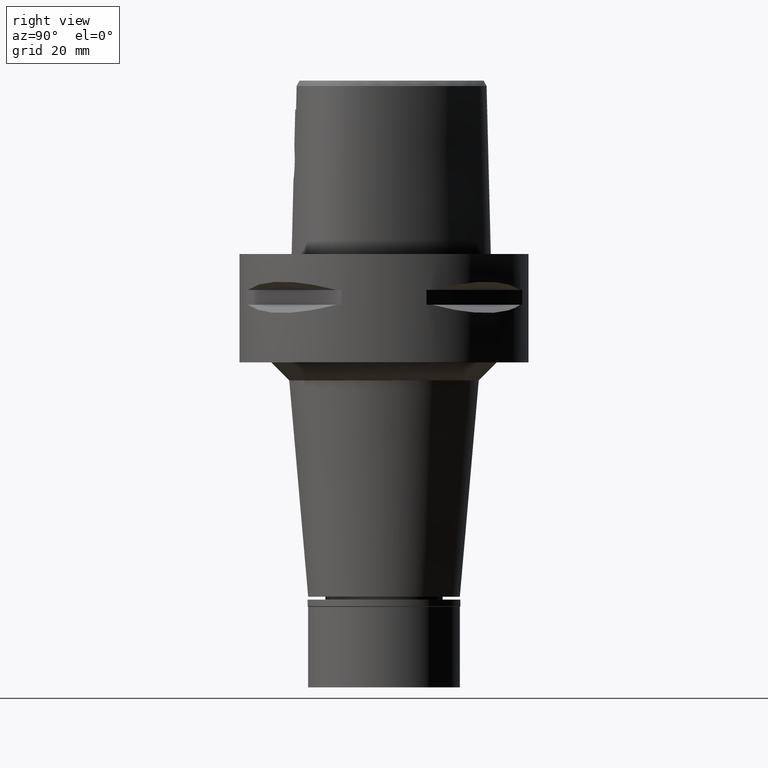
[diagram: clean part render]
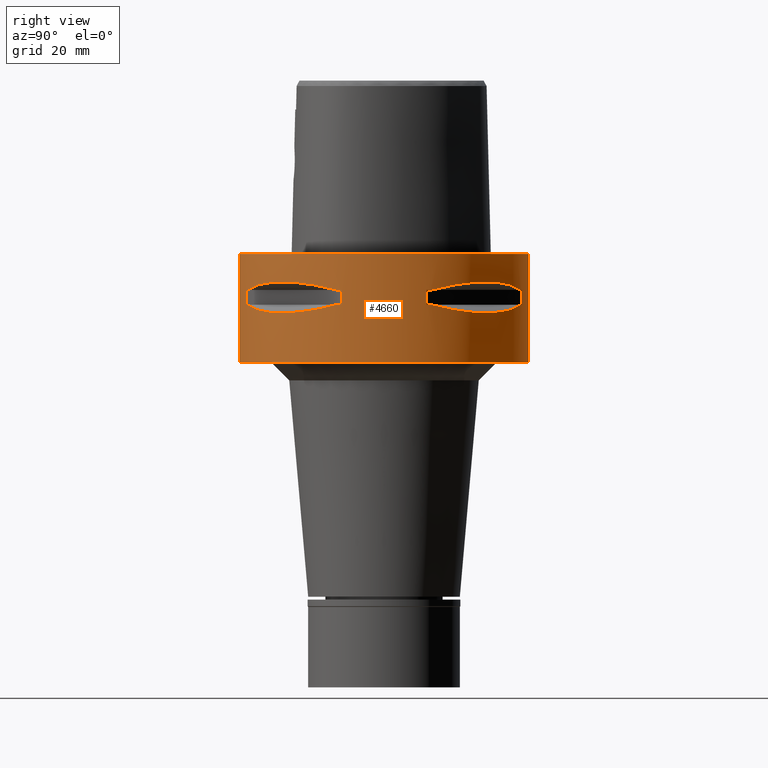
[diagram: same view with one face highlighted and labeled with its STEP entity id]
A machine part, right view. The second image highlights one B-rep face of the part: STEP entity #4660.
In plain terms, the highlighted cylindrical surface (partial cylindrical patch) has radius 40 mm, axis along (0, 0, -1).
Its self-contained STEP definition (entity closure, byte-faithful):
#9 = AXIS2_PLACEMENT_3D ( 'NONE', #1593, #3193, #4768 ) ;
#87 = EDGE_CURVE ( 'NONE', #1760, #4686, #3591, .T. ) ;
#182 = CYLINDRICAL_SURFACE ( 'NONE', #4574, 40.00000000000000000 ) ;
#204 = VERTEX_POINT ( 'NONE', #229 ) ;
#220 = CARTESIAN_POINT ( 'NONE',  ( 0.0000000000000000000, 1.293533181598999990E-14, -14.05000000000000071 ) ) ;
#229 = CARTESIAN_POINT ( 'NONE',  ( 13.23717311056000057, -37.74622163926999718, -9.950000000002001244 ) ) ;
#233 = AXIS2_PLACEMENT_3D ( 'NONE', #593, #4250, #2279 ) ;
#234 = DIRECTION ( 'NONE',  ( 0.0000000000000000000, 0.0000000000000000000, 1.000000000000000000 ) ) ;
#287 = CARTESIAN_POINT ( 'NONE',  ( 33.76566745675005166, 21.44484052678287256, -15.77571175125579828 ) ) ;
#371 = CARTESIAN_POINT ( 'NONE',  ( 20.34261333234551472, -34.44518065740425783, -15.60313948593864275 ) ) ;
#385 = CARTESIAN_POINT ( 'NONE',  ( 0.0000000000000000000, 40.00000000000000000, 0.0000000000000000000 ) ) ;
#392 = CARTESIAN_POINT ( 'NONE',  ( 21.50560509406274434, 33.72697758561020720, -15.78472370821746118 ) ) ;
#428 = CIRCLE ( 'NONE', #9, 39.99999999999999289 ) ;
#440 = CARTESIAN_POINT ( 'NONE',  ( 30.77249687753092289, -25.62819065487347814, -16.26160051742767365 ) ) ;
#457 = CARTESIAN_POINT ( 'NONE',  ( 0.0000000000000000000, 1.293533181598999990E-14, -9.950000000000001066 ) ) ;
#515 = DIRECTION ( 'NONE',  ( 0.0000000000000000000, 0.0000000000000000000, -1.000000000000000000 ) ) ;
#536 = DIRECTION ( 'NONE',  ( 0.0000000000000000000, 0.0000000000000000000, 1.000000000000000000 ) ) ;
#551 = CARTESIAN_POINT ( 'NONE',  ( 0.0000000000000000000, 40.00000000000000000, -30.00000000000000000 ) ) ;
#575 = CARTESIAN_POINT ( 'NONE',  ( 0.0000000000000000000, -40.00000000000000000, 0.0000000000000000000 ) ) ;
#576 = CIRCLE ( 'NONE', #2430, 39.99999999999999289 ) ;
#593 = CARTESIAN_POINT ( 'NONE',  ( 0.0000000000000000000, 1.293533181598999990E-14, -14.05000000000000071 ) ) ;
#601 = CARTESIAN_POINT ( 'NONE',  ( 37.74622163926999718, 13.23717311056000057, -14.05000000000000071 ) ) ;
#632 = ORIENTED_EDGE ( 'NONE', *, *, #3726, .T. ) ;
#649 = DIRECTION ( 'NONE',  ( 0.0000000000000000000, 0.0000000000000000000, 1.000000000000000000 ) ) ;
#679 = LINE ( 'NONE', #4259, #2286 ) ;
#687 = VERTEX_POINT ( 'NONE', #2782 ) ;
#756 = CARTESIAN_POINT ( 'NONE',  ( 23.60097336453497618, 32.30995221951452834, -16.06165603927751917 ) ) ;
#764 = CARTESIAN_POINT ( 'NONE',  ( 37.74622163926999718, -13.23717311056000057, -9.950000000002001244 ) ) ;
#780 = DIRECTION ( 'NONE',  ( 0.0000000000000000000, 0.0000000000000000000, 1.000000000000000000 ) ) ;
#785 = CARTESIAN_POINT ( 'NONE',  ( 30.34851826270024944, 26.21995747455423853, -16.33009976521772799 ) ) ;
#789 = CARTESIAN_POINT ( 'NONE',  ( 26.20795918965211158, -30.36058330527167115, -7.669882118573495333 ) ) ;
#804 = CARTESIAN_POINT ( 'NONE',  ( 13.23717311056000057, 37.74622163926999718, -14.05000000000000071 ) ) ;
#828 = CARTESIAN_POINT ( 'NONE',  ( 23.95303639238279914, -32.16767032370825063, -16.14729882780506287 ) ) ;
#832 = CARTESIAN_POINT ( 'NONE',  ( 35.41596287855380609, 18.83173199174708046, -8.619939612211808821 ) ) ;
#833 = EDGE_CURVE ( 'NONE', #972, #2901, #428, .T. ) ;
#914 = CARTESIAN_POINT ( 'NONE',  ( 11.76033600280999991, 38.23211342708000160, -9.950000000000001066 ) ) ;
#972 = VERTEX_POINT ( 'NONE', #2540 ) ;
#984 = DIRECTION ( 'NONE',  ( 0.0000000000000000000, 0.0000000000000000000, -1.000000000000000000 ) ) ;
#1005 = DIRECTION ( 'NONE',  ( 0.0000000000000000000, 0.0000000000000000000, 1.000000000000000000 ) ) ;
#1073 = CARTESIAN_POINT ( 'NONE',  ( 33.91944728533341191, 21.20128033779756294, -15.73905907260447101 ) ) ;
#1096 = DIRECTION ( 'NONE',  ( 0.0000000000000000000, 1.000000000000000000, 0.0000000000000000000 ) ) ;
#1108 = ORIENTED_EDGE ( 'NONE', *, *, #1537, .T. ) ;
#1126 = CARTESIAN_POINT ( 'NONE',  ( 21.62017158009700069, 33.65365962422837498, -15.80156334789098160 ) ) ;
#1149 = DIRECTION ( 'NONE',  ( 0.3309293277639132058, -0.9436555409818374596, 0.0000000000000000000 ) ) ;
#1150 = EDGE_CURVE ( 'NONE', #1550, #2199, #4187, .T. ) ;
#1154 = CARTESIAN_POINT ( 'NONE',  ( 32.16767032371209467, 23.95303639237203797, -16.14729882780224202 ) ) ;
#1155 = ORIENTED_EDGE ( 'NONE', *, *, #3350, .F. ) ;
#1170 = DIRECTION ( 'NONE',  ( 0.0000000000000000000, 0.0000000000000000000, -1.000000000000000000 ) ) ;
#1181 = CARTESIAN_POINT ( 'NONE',  ( 33.56701934068144766, -21.75464223249341345, -15.82109001420603533 ) ) ;
#1209 = CARTESIAN_POINT ( 'NONE',  ( 20.91613153241887701, -34.09685321779939926, -15.69507322892818557 ) ) ;
#1230 = CARTESIAN_POINT ( 'NONE',  ( 16.81132763099230587, -36.35358138589664634, -14.94059947014864775 ) ) ;
#1232 = CARTESIAN_POINT ( 'NONE',  ( 37.74622163926999718, 13.23717311056000057, -9.950000000002001244 ) ) ;
#1247 = CARTESIAN_POINT ( 'NONE',  ( 0.0000000000000000000, 1.293533181598999990E-14, -9.950000000000001066 ) ) ;
#1292 = ORIENTED_EDGE ( 'NONE', *, *, #4493, .F. ) ;
#1401 = CARTESIAN_POINT ( 'NONE',  ( 0.0000000000000000000, 1.293533181598999990E-14, 0.0000000000000000000 ) ) ;
#1419 = EDGE_LOOP ( 'NONE', ( #3532, #4298, #632, #3756, #5059, #2111, #1769, #3427 ) ) ;
#1442 = VECTOR ( 'NONE', #1715, 1000.000000000000000 ) ;
#1446 = VERTEX_POINT ( 'NONE', #2066 ) ;
#1501 = ORIENTED_EDGE ( 'NONE', *, *, #4777, .T. ) ;
#1520 = CARTESIAN_POINT ( 'NONE',  ( 34.09685321779860345, 20.91613153242115075, -15.69507322892878953 ) ) ;
#1527 = CARTESIAN_POINT ( 'NONE',  ( 18.83173199174709467, -35.41596287855377767, -8.619939612211808821 ) ) ;
#1537 = EDGE_CURVE ( 'NONE', #204, #2460, #4005, .T. ) ;
#1549 = CARTESIAN_POINT ( 'NONE',  ( 22.02254759438460141, 33.39247868354773630, -15.85920599531294783 ) ) ;
#1550 = VERTEX_POINT ( 'NONE', #2380 ) ;
#1586 = CARTESIAN_POINT ( 'NONE',  ( 0.0000000000000000000, 1.293533181598999990E-14, -9.950000000000001066 ) ) ;
#1593 = CARTESIAN_POINT ( 'NONE',  ( 0.0000000000000000000, 1.293533181598999990E-14, -14.05000000000000071 ) ) ;
#1596 = CARTESIAN_POINT ( 'NONE',  ( 33.72697758561029246, -21.50560509406250276, -15.78472370821739901 ) ) ;
#1611 = CIRCLE ( 'NONE', #5060, 40.00000000000000000 ) ;
#1715 = DIRECTION ( 'NONE',  ( 0.0000000000000000000, 0.0000000000000000000, -1.000000000000000000 ) ) ;
#1735 = CARTESIAN_POINT ( 'NONE',  ( 38.23211342708000160, 11.76033600280999991, -9.950000000000001066 ) ) ;
#1749 = EDGE_CURVE ( 'NONE', #1843, #1446, #3693, .T. ) ;
#1760 = VERTEX_POINT ( 'NONE', #3237 ) ;
#1769 = ORIENTED_EDGE ( 'NONE', *, *, #4557, .T. ) ;
#1801 = CARTESIAN_POINT ( 'NONE',  ( 33.82993376593505275, 21.34345216682098112, -15.76055673748761166 ) ) ;
#1843 = VERTEX_POINT ( 'NONE', #3665 ) ;
#1849 = DIRECTION ( 'NONE',  ( 0.3309293277639132058, 0.9436555409818374596, 0.0000000000000000000 ) ) ;
#1853 = CARTESIAN_POINT ( 'NONE',  ( 0.0000000000000000000, -40.00000000000000000, 0.0000000000000000000 ) ) ;
#1878 = CARTESIAN_POINT ( 'NONE',  ( 0.0000000000000000000, 1.293533181598999990E-14, -9.950000000000001066 ) ) ;
#1889 = CARTESIAN_POINT ( 'NONE',  ( 33.75216276490046852, 21.46607685731544990, -15.77886817953061005 ) ) ;
#1935 = LINE ( 'NONE', #5063, #2998 ) ;
#1949 = CARTESIAN_POINT ( 'NONE',  ( 21.52391145898924663, 33.71529052282357952, -15.78742602700012831 ) ) ;
#1958 = VECTOR ( 'NONE', #234, 1000.000000000000000 ) ;
#1979 = ORIENTED_EDGE ( 'NONE', *, *, #87, .T. ) ;
#1988 = VERTEX_POINT ( 'NONE', #385 ) ;
#1990 = CARTESIAN_POINT ( 'NONE',  ( 38.23211342708000160, -11.76033600280999991, -9.950000000000001066 ) ) ;
#1999 = CARTESIAN_POINT ( 'NONE',  ( 21.46607685731536819, -33.75216276490051825, -15.77886817953059051 ) ) ;
#2006 = CARTESIAN_POINT ( 'NONE',  ( 35.41591128513823605, -18.83182902076454468, -8.619912199391261964 ) ) ;
#2023 = CARTESIAN_POINT ( 'NONE',  ( 21.34345216682037716, -33.82993376593525170, -15.76055673748744468 ) ) ;
#2029 = CARTESIAN_POINT ( 'NONE',  ( 23.88355431037091137, -32.22577213857957901, -7.859897272571249260 ) ) ;
#2034 = VECTOR ( 'NONE', #515, 1000.000000000000000 ) ;
#2046 = CARTESIAN_POINT ( 'NONE',  ( 33.65365962422774260, -21.62017158009728135, -15.80156334789082528 ) ) ;
#2062 = DIRECTION ( 'NONE',  ( 0.0000000000000000000, 0.0000000000000000000, 1.000000000000000000 ) ) ;
#2066 = CARTESIAN_POINT ( 'NONE',  ( 38.23211342708000160, 11.76033600280999991, -14.05000000000000071 ) ) ;
#2068 = B_SPLINE_CURVE_WITH_KNOTS ( 'NONE', 3,
 ( #601, #5078, #4229, #2255, #3777, #1520, #1073, #1801, #2285, #287, #1889, #1154, #785, #2755, #4337, #756, #2826, #1549, #2442, #1126, #3823, #1949, #392, #4750, #2372, #804 ),
 .UNSPECIFIED., .F., .F.,
 ( 4, 1, 1, 1, 1, 1, 1, 2, 2, 2, 1, 1, 1, 1, 1, 1, 2, 2, 4 ),
 ( 0.0000000000000000000, 0.1249999999999938660, 0.1874999999999906741, 0.2187499999999889255, 0.2343749999999879541, 0.2421874999999872879, 0.2460937499999869549, 0.2480468749999869271, 0.2499999999999869271, 0.4999999999999968914, 0.6250000000000018874, 0.6875000000000044409, 0.7187500000000057732, 0.7343750000000064393, 0.7421875000000067724, 0.7460937500000065503, 0.7480468750000062172, 0.7500000000000058842, 1.000000000000000000 ),
 .UNSPECIFIED. ) ;
#2111 = ORIENTED_EDGE ( 'NONE', *, *, #1749, .F. ) ;
#2126 = EDGE_CURVE ( 'NONE', #972, #4646, #3068, .T. ) ;
#2131 = DIRECTION ( 'NONE',  ( 0.0000000000000000000, 0.0000000000000000000, -1.000000000000000000 ) ) ;
#2199 = VERTEX_POINT ( 'NONE', #914 ) ;
#2251 = CIRCLE ( 'NONE', #233, 39.99999999999999289 ) ;
#2255 = CARTESIAN_POINT ( 'NONE',  ( 35.11589783530617126, 19.18269457493275354, -15.40342377741110091 ) ) ;
#2279 = DIRECTION ( 'NONE',  ( 0.2940084000702865574, 0.9558028356769561196, 0.0000000000000000000 ) ) ;
#2285 = CARTESIAN_POINT ( 'NONE',  ( 33.79139713908593023, 21.40429668490282467, -15.76966389594722528 ) ) ;
#2286 = VECTOR ( 'NONE', #649, 1000.000000000000000 ) ;
#2323 = VERTEX_POINT ( 'NONE', #3119 ) ;
#2342 = CIRCLE ( 'NONE', #2841, 39.99999999999999289 ) ;
#2372 = CARTESIAN_POINT ( 'NONE',  ( 16.14402792110260521, 36.72682052670324993, -14.82054974552761095 ) ) ;
#2380 = CARTESIAN_POINT ( 'NONE',  ( 13.23717311056000057, 37.74622163926999718, -9.950000000002001244 ) ) ;
#2417 = CARTESIAN_POINT ( 'NONE',  ( 37.74622163926999718, -13.23717311056000057, -14.05000000000000071 ) ) ;
#2430 = AXIS2_PLACEMENT_3D ( 'NONE', #1586, #4711, #4355 ) ;
#2442 = CARTESIAN_POINT ( 'NONE',  ( 21.75464223249287699, 33.56701934068274795, -15.82109001420633732 ) ) ;
#2448 = CARTESIAN_POINT ( 'NONE',  ( 30.36058330527161075, 26.20795918965221460, -7.669882118573495333 ) ) ;
#2458 = B_SPLINE_CURVE_WITH_KNOTS ( 'NONE', 3,
 ( #3548, #3196, #1230, #3172, #371, #1209, #3570, #2023, #3600, #4368, #1999, #828, #4390, #5133, #440, #3146, #4771, #4025, #1181, #2046, #2807, #3523, #1596, #4722, #2785, #2417 ),
 .UNSPECIFIED., .F., .F.,
 ( 4, 1, 1, 1, 1, 1, 1, 2, 2, 2, 1, 1, 1, 1, 1, 1, 2, 2, 4 ),
 ( 0.0000000000000000000, 0.1250000000000018319, 0.1875000000000027478, 0.2187500000000032196, 0.2343750000000035805, 0.2421875000000038025, 0.2460937500000040523, 0.2480468750000043576, 0.2500000000000046629, 0.5000000000000000000, 0.6249999999999975575, 0.6874999999999964473, 0.7187499999999961142, 0.7343749999999960032, 0.7421874999999960032, 0.7460937499999957812, 0.7480468749999958922, 0.7499999999999958922, 1.000000000000000000 ),
 .UNSPECIFIED. ) ;
#2460 = VERTEX_POINT ( 'NONE', #5047 ) ;
#2540 = CARTESIAN_POINT ( 'NONE',  ( 38.23211342708000160, -11.76033600280999991, -14.05000000000000071 ) ) ;
#2561 = EDGE_CURVE ( 'NONE', #687, #3740, #2068, .T. ) ;
#2571 = CARTESIAN_POINT ( 'NONE',  ( 0.0000000000000000000, 40.00000000000000000, 0.0000000000000000000 ) ) ;
#2607 = EDGE_CURVE ( 'NONE', #3707, #2901, #2458, .T. ) ;
#2614 = ORIENTED_EDGE ( 'NONE', *, *, #833, .T. ) ;
#2700 = CARTESIAN_POINT ( 'NONE',  ( 0.0000000000000000000, 1.293533181598999990E-14, -30.00000000000000000 ) ) ;
#2725 = CARTESIAN_POINT ( 'NONE',  ( 0.0000000000000000000, 1.293533181598999990E-14, -14.05000000000000071 ) ) ;
#2737 = CARTESIAN_POINT ( 'NONE',  ( 36.74070924257181758, -16.10442380448734312, -9.189948522868267133 ) ) ;
#2755 = CARTESIAN_POINT ( 'NONE',  ( 27.25214773984120598, 29.31642813391417590, -16.33014064577303515 ) ) ;
#2760 = CARTESIAN_POINT ( 'NONE',  ( 37.74622163926999718, 13.23717311056000057, -9.950000000002001244 ) ) ;
#2761 = CARTESIAN_POINT ( 'NONE',  ( 13.23717311056000057, -37.74622163926999718, -9.950000000002001244 ) ) ;
#2782 = CARTESIAN_POINT ( 'NONE',  ( 37.74622163926999718, 13.23717311056000057, -14.05000000000000071 ) ) ;
#2785 = CARTESIAN_POINT ( 'NONE',  ( 36.72682052669194519, -16.14402792113480345, -14.82054974553614635 ) ) ;
#2790 = EDGE_CURVE ( 'NONE', #4592, #2199, #679, .T. ) ;
#2807 = CARTESIAN_POINT ( 'NONE',  ( 33.69065616467145929, -21.56243030661679327, -15.79309434609244001 ) ) ;
#2826 = CARTESIAN_POINT ( 'NONE',  ( 22.55421454656803704, 33.03835700910301654, -15.93168855142971374 ) ) ;
#2839 = CIRCLE ( 'NONE', #3815, 39.99999999999997868 ) ;
#2841 = AXIS2_PLACEMENT_3D ( 'NONE', #457, #2062, #2895 ) ;
#2888 = FACE_OUTER_BOUND ( 'NONE', #3935, .T. ) ;
#2895 = DIRECTION ( 'NONE',  ( 0.2940084000702865574, -0.9558028356769561196, 0.0000000000000000000 ) ) ;
#2901 = VERTEX_POINT ( 'NONE', #4314 ) ;
#2963 = DIRECTION ( 'NONE',  ( 0.0000000000000000000, -1.000000000000000000, 0.0000000000000000000 ) ) ;
#2969 = VERTEX_POINT ( 'NONE', #1232 ) ;
#2976 = DIRECTION ( 'NONE',  ( 0.0000000000000000000, 0.0000000000000000000, -1.000000000000000000 ) ) ;
#2977 = CARTESIAN_POINT ( 'NONE',  ( 13.23717311056000057, 37.74622163926999718, -9.950000000002001244 ) ) ;
#2998 = VECTOR ( 'NONE', #1170, 1000.000000000000000 ) ;
#3068 = LINE ( 'NONE', #3808, #1958 ) ;
#3081 = CARTESIAN_POINT ( 'NONE',  ( 13.23717311056000057, -37.74622163926999718, -14.05000000000000071 ) ) ;
#3119 = CARTESIAN_POINT ( 'NONE',  ( 11.76033600280999991, -38.23211342708000160, -9.950000000000001066 ) ) ;
#3146 = CARTESIAN_POINT ( 'NONE',  ( 32.30995221950663421, -23.60097336453835837, -16.06165603927566821 ) ) ;
#3172 = CARTESIAN_POINT ( 'NONE',  ( 19.18269457492549179, -35.11589783530871500, -15.40342377740917001 ) ) ;
#3174 = AXIS2_PLACEMENT_3D ( 'NONE', #2725, #3991, #1149 ) ;
#3193 = DIRECTION ( 'NONE',  ( 0.0000000000000000000, 0.0000000000000000000, -1.000000000000000000 ) ) ;
#3196 = CARTESIAN_POINT ( 'NONE',  ( 14.69039122917563844, -37.23659447745037454, -14.43521939500837981 ) ) ;
#3222 = CARTESIAN_POINT ( 'NONE',  ( 36.74073341982096252, 16.10435486228974611, -9.189966798081965038 ) ) ;
#3225 = CARTESIAN_POINT ( 'NONE',  ( 30.36058330527161075, -26.20795918965218618, -7.669863843587148011 ) ) ;
#3237 = CARTESIAN_POINT ( 'NONE',  ( 0.0000000000000000000, -40.00000000000000000, -30.00000000000000000 ) ) ;
#3266 = LINE ( 'NONE', #2571, #1442 ) ;
#3319 = CARTESIAN_POINT ( 'NONE',  ( 0.0000000000000000000, 1.293533181598999990E-14, 5.625000000000000000 ) ) ;
#3342 = LINE ( 'NONE', #575, #3402 ) ;
#3350 = EDGE_CURVE ( 'NONE', #1988, #4686, #3266, .T. ) ;
#3387 = ORIENTED_EDGE ( 'NONE', *, *, #4240, .T. ) ;
#3402 = VECTOR ( 'NONE', #2131, 1000.000000000000000 ) ;
#3427 = ORIENTED_EDGE ( 'NONE', *, *, #4968, .T. ) ;
#3452 = ORIENTED_EDGE ( 'NONE', *, *, #2607, .F. ) ;
#3513 = EDGE_CURVE ( 'NONE', #1988, #3714, #1611, .T. ) ;
#3523 = CARTESIAN_POINT ( 'NONE',  ( 33.71529052282339478, -21.52391145898932834, -15.78742602700008568 ) ) ;
#3532 = ORIENTED_EDGE ( 'NONE', *, *, #1150, .T. ) ;
#3534 = EDGE_CURVE ( 'NONE', #687, #1446, #2839, .T. ) ;
#3541 = ORIENTED_EDGE ( 'NONE', *, *, #2126, .F. ) ;
#3548 = CARTESIAN_POINT ( 'NONE',  ( 13.23717311056000057, -37.74622163926999718, -14.05000000000000071 ) ) ;
#3570 = CARTESIAN_POINT ( 'NONE',  ( 21.20128033779640830, -33.91944728533381692, -15.73905907260415837 ) ) ;
#3591 = CIRCLE ( 'NONE', #4016, 40.00000000000000000 ) ;
#3600 = CARTESIAN_POINT ( 'NONE',  ( 21.40429668490248005, -33.79139713908606524, -15.76966389594713647 ) ) ;
#3644 = CARTESIAN_POINT ( 'NONE',  ( 11.76033600280999991, -38.23211342708000160, -14.05000000000000071 ) ) ;
#3665 = CARTESIAN_POINT ( 'NONE',  ( 38.23211342708000160, 11.76033600280999991, -9.950000000000001066 ) ) ;
#3681 = FACE_BOUND ( 'NONE', #1419, .T. ) ;
#3693 = LINE ( 'NONE', #1735, #2034 ) ;
#3707 = VERTEX_POINT ( 'NONE', #3081 ) ;
#3714 = VERTEX_POINT ( 'NONE', #1853 ) ;
#3726 = EDGE_CURVE ( 'NONE', #4592, #3740, #2251, .T. ) ;
#3732 = ORIENTED_EDGE ( 'NONE', *, *, #3513, .T. ) ;
#3740 = VERTEX_POINT ( 'NONE', #3857 ) ;
#3756 = ORIENTED_EDGE ( 'NONE', *, *, #2561, .F. ) ;
#3772 = CARTESIAN_POINT ( 'NONE',  ( 18.83182902076451626, 35.41591128513827869, -8.619912199391261964 ) ) ;
#3777 = CARTESIAN_POINT ( 'NONE',  ( 34.44518065740276569, 20.34261333234974245, -15.60313948593977074 ) ) ;
#3798 = EDGE_CURVE ( 'NONE', #3707, #4955, #5151, .T. ) ;
#3808 = CARTESIAN_POINT ( 'NONE',  ( 38.23211342708000160, -11.76033600280999991, -14.05000000000000071 ) ) ;
#3815 = AXIS2_PLACEMENT_3D ( 'NONE', #220, #984, #4174 ) ;
#3823 = CARTESIAN_POINT ( 'NONE',  ( 21.56243030661663695, 33.69065616467183588, -15.79309434609252705 ) ) ;
#3857 = CARTESIAN_POINT ( 'NONE',  ( 13.23717311056000057, 37.74622163926999718, -14.05000000000000071 ) ) ;
#3935 = EDGE_LOOP ( 'NONE', ( #3732, #1501, #1979, #1155 ) ) ;
#3955 = CARTESIAN_POINT ( 'NONE',  ( 32.22577213857955059, 23.88355431037101795, -7.859897272571249260 ) ) ;
#3957 = CARTESIAN_POINT ( 'NONE',  ( 16.10435486228985980, -36.74073341982089147, -9.189966798081965038 ) ) ;
#3991 = DIRECTION ( 'NONE',  ( 0.0000000000000000000, 0.0000000000000000000, -1.000000000000000000 ) ) ;
#3999 = CIRCLE ( 'NONE', #4650, 39.99999999999997868 ) ;
#4005 = B_SPLINE_CURVE_WITH_KNOTS ( 'NONE', 3,
 ( #2761, #3957, #1527, #2029, #789, #3225, #4344, #2006, #2737, #764 ),
 .UNSPECIFIED., .F., .F.,
 ( 4, 2, 2, 2, 4 ),
 ( 0.0000000000000000000, 0.2500000000000000000, 0.5000000000000000000, 0.7500000000000000000, 1.000000000000000000 ),
 .UNSPECIFIED. ) ;
#4016 = AXIS2_PLACEMENT_3D ( 'NONE', #2700, #780, #4282 ) ;
#4025 = CARTESIAN_POINT ( 'NONE',  ( 33.39247868354526361, -22.02254759438564591, -15.85920599531236164 ) ) ;
#4030 = CARTESIAN_POINT ( 'NONE',  ( 26.20795918965211158, 30.36058330527170668, -7.669863843587148011 ) ) ;
#4073 = CARTESIAN_POINT ( 'NONE',  ( 16.10442380448735733, 36.74070924257181758, -9.189948522868267133 ) ) ;
#4140 = EDGE_CURVE ( 'NONE', #2460, #4646, #3999, .T. ) ;
#4174 = DIRECTION ( 'NONE',  ( 0.9436555409818374596, 0.3309293277639132058, 0.0000000000000000000 ) ) ;
#4187 = CIRCLE ( 'NONE', #5091, 39.99999999999997868 ) ;
#4229 = CARTESIAN_POINT ( 'NONE',  ( 36.35358138589326416, 16.81132763100200123, -14.94059947015123058 ) ) ;
#4240 = EDGE_CURVE ( 'NONE', #2323, #204, #2342, .T. ) ;
#4250 = DIRECTION ( 'NONE',  ( 0.0000000000000000000, 0.0000000000000000000, -1.000000000000000000 ) ) ;
#4259 = CARTESIAN_POINT ( 'NONE',  ( 11.76033600280999991, 38.23211342708000160, -14.05000000000000071 ) ) ;
#4282 = DIRECTION ( 'NONE',  ( 0.0000000000000000000, -1.000000000000000000, 0.0000000000000000000 ) ) ;
#4298 = ORIENTED_EDGE ( 'NONE', *, *, #2790, .F. ) ;
#4314 = CARTESIAN_POINT ( 'NONE',  ( 37.74622163926999718, -13.23717311056000057, -14.05000000000000071 ) ) ;
#4337 = CARTESIAN_POINT ( 'NONE',  ( 25.62819065486898396, 30.77249687754148866, -16.26160051743016055 ) ) ;
#4344 = CARTESIAN_POINT ( 'NONE',  ( 32.22570670470193477, -23.88364259920623667, -7.859869859750701515 ) ) ;
#4355 = DIRECTION ( 'NONE',  ( 0.9558028356769561196, 0.2940084000702865574, 0.0000000000000000000 ) ) ;
#4368 = CARTESIAN_POINT ( 'NONE',  ( 21.44484052678270913, -33.76566745675011560, -15.77571175125575031 ) ) ;
#4378 = CARTESIAN_POINT ( 'NONE',  ( 11.76033600280999991, 38.23211342708000160, -14.05000000000000071 ) ) ;
#4390 = CARTESIAN_POINT ( 'NONE',  ( 26.21995747456629644, -30.34851826269509800, -16.33009976522055240 ) ) ;
#4474 = DIRECTION ( 'NONE',  ( 0.9436555409818374596, -0.3309293277639132058, 0.0000000000000000000 ) ) ;
#4493 = EDGE_CURVE ( 'NONE', #2323, #4955, #1935, .T. ) ;
#4557 = EDGE_CURVE ( 'NONE', #1843, #2969, #576, .T. ) ;
#4574 = AXIS2_PLACEMENT_3D ( 'NONE', #3319, #4927, #2963 ) ;
#4592 = VERTEX_POINT ( 'NONE', #4378 ) ;
#4646 = VERTEX_POINT ( 'NONE', #1990 ) ;
#4650 = AXIS2_PLACEMENT_3D ( 'NONE', #1247, #536, #4474 ) ;
#4660 = ADVANCED_FACE ( 'NONE', ( #2888, #4950, #3681 ), #182, .T. ) ;
#4678 = ORIENTED_EDGE ( 'NONE', *, *, #4140, .T. ) ;
#4686 = VERTEX_POINT ( 'NONE', #551 ) ;
#4711 = DIRECTION ( 'NONE',  ( 0.0000000000000000000, 0.0000000000000000000, 1.000000000000000000 ) ) ;
#4722 = CARTESIAN_POINT ( 'NONE',  ( 35.39137327285502010, -18.89342208874845142, -15.39779115589221625 ) ) ;
#4750 = CARTESIAN_POINT ( 'NONE',  ( 18.89342208871625317, 35.39137327286631063, -15.39779115588368619 ) ) ;
#4751 = ORIENTED_EDGE ( 'NONE', *, *, #3798, .T. ) ;
#4768 = DIRECTION ( 'NONE',  ( 0.9558028356769561196, -0.2940084000702865574, 0.0000000000000000000 ) ) ;
#4771 = CARTESIAN_POINT ( 'NONE',  ( 33.03835700909839090, -22.55421454657001235, -15.93168855142863904 ) ) ;
#4777 = EDGE_CURVE ( 'NONE', #3714, #1760, #3342, .T. ) ;
#4920 = CARTESIAN_POINT ( 'NONE',  ( 23.88364259920617272, 32.22570670470200582, -7.859869859750701515 ) ) ;
#4927 = DIRECTION ( 'NONE',  ( 0.0000000000000000000, 0.0000000000000000000, -1.000000000000000000 ) ) ;
#4950 = FACE_BOUND ( 'NONE', #5134, .T. ) ;
#4955 = VERTEX_POINT ( 'NONE', #3644 ) ;
#4968 = EDGE_CURVE ( 'NONE', #2969, #1550, #5092, .T. ) ;
#5047 = CARTESIAN_POINT ( 'NONE',  ( 37.74622163926999718, -13.23717311056000057, -9.950000000002001244 ) ) ;
#5059 = ORIENTED_EDGE ( 'NONE', *, *, #3534, .T. ) ;
#5060 = AXIS2_PLACEMENT_3D ( 'NONE', #1401, #2976, #1096 ) ;
#5063 = CARTESIAN_POINT ( 'NONE',  ( 11.76033600280999991, -38.23211342708000160, -9.950000000000001066 ) ) ;
#5078 = CARTESIAN_POINT ( 'NONE',  ( 37.23659447744844897, 14.69039122918117357, -14.43521939500984885 ) ) ;
#5091 = AXIS2_PLACEMENT_3D ( 'NONE', #1878, #1005, #1849 ) ;
#5092 = B_SPLINE_CURVE_WITH_KNOTS ( 'NONE', 3,
 ( #2760, #3222, #832, #3955, #2448, #4030, #4920, #3772, #4073, #2977 ),
 .UNSPECIFIED., .F., .F.,
 ( 4, 2, 2, 2, 4 ),
 ( 0.0000000000000000000, 0.2500000000000000000, 0.5000000000000000000, 0.7500000000000000000, 1.000000000000000000 ),
 .UNSPECIFIED. ) ;
#5133 = CARTESIAN_POINT ( 'NONE',  ( 29.31642813390815050, -27.25214773984377459, -16.33014064577162472 ) ) ;
#5134 = EDGE_LOOP ( 'NONE', ( #4678, #3541, #2614, #3452, #4751, #1292, #3387, #1108 ) ) ;
#5151 = CIRCLE ( 'NONE', #3174, 39.99999999999997868 ) ;